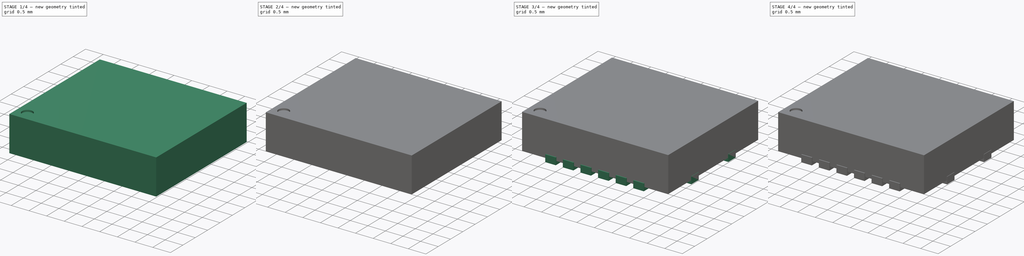
[diagram: build sequence overview — one tinted view per stage of 4, left to right]
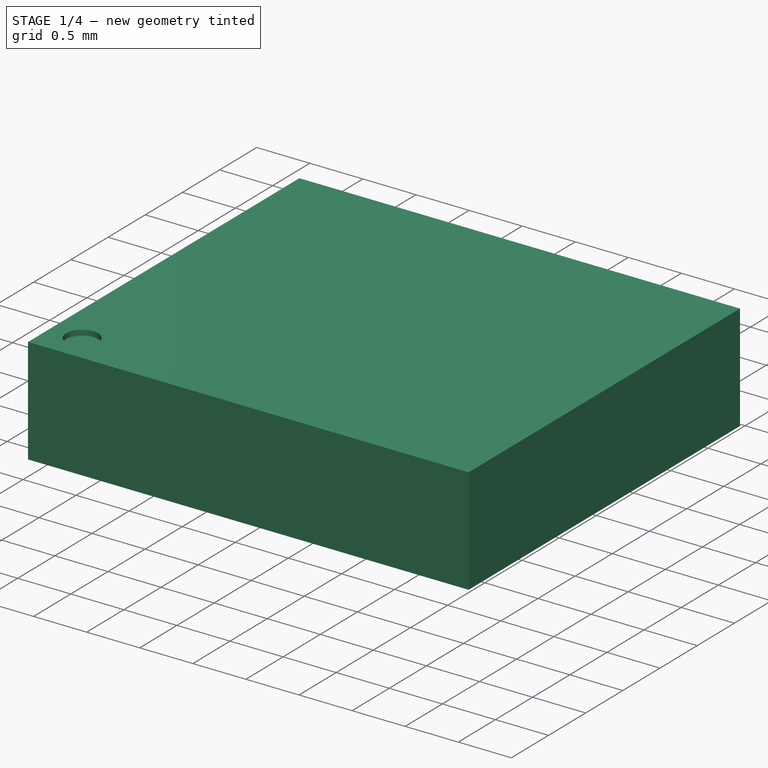
[diagram: stage 1 of 4 — iso view after this stage's code; geometry added in this stage tinted green]
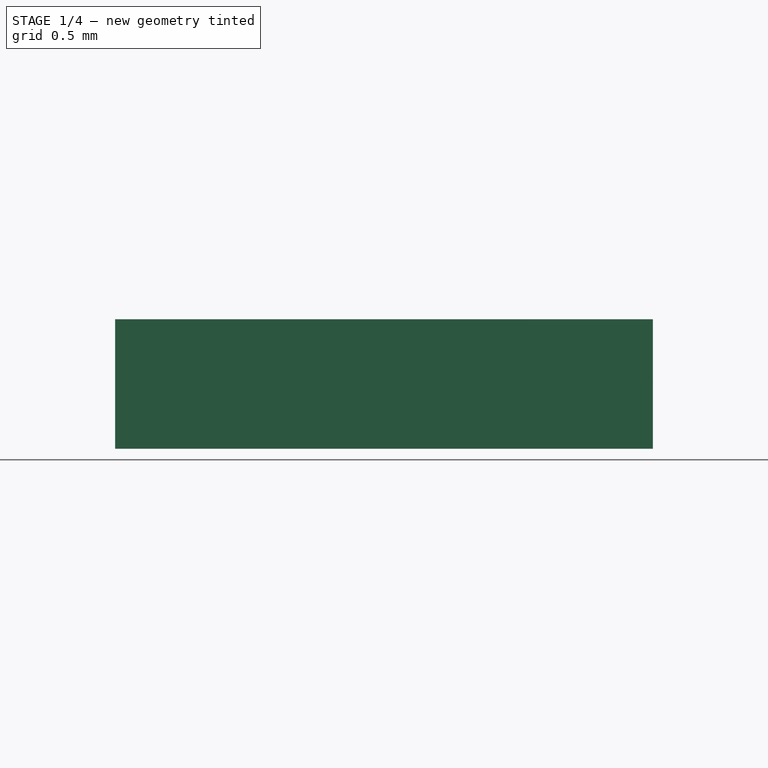
[diagram: stage 1 of 4 — front view after this stage's code; geometry added in this stage tinted green]
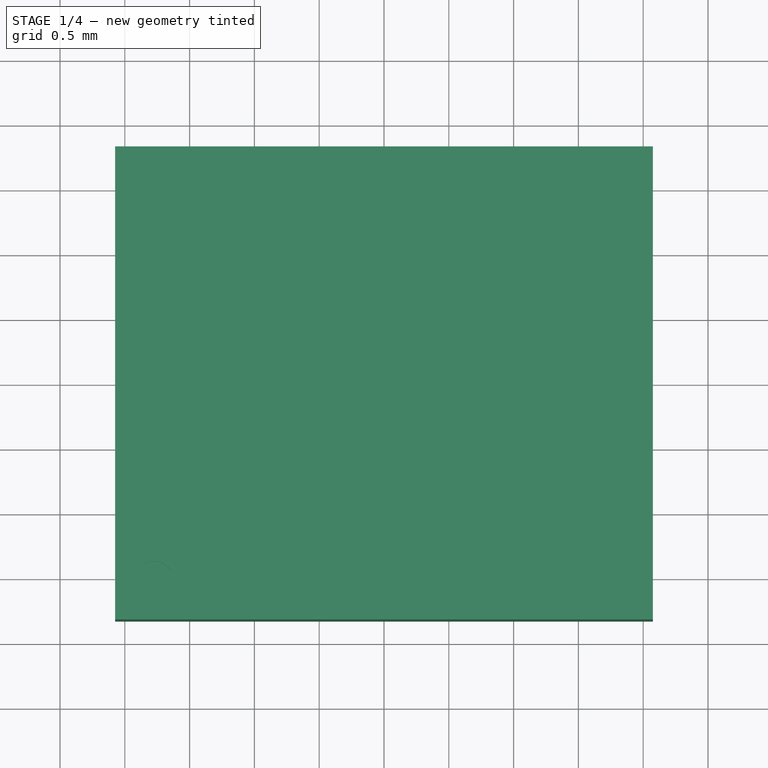
[diagram: stage 1 of 4 — top view after this stage's code; geometry added in this stage tinted green]
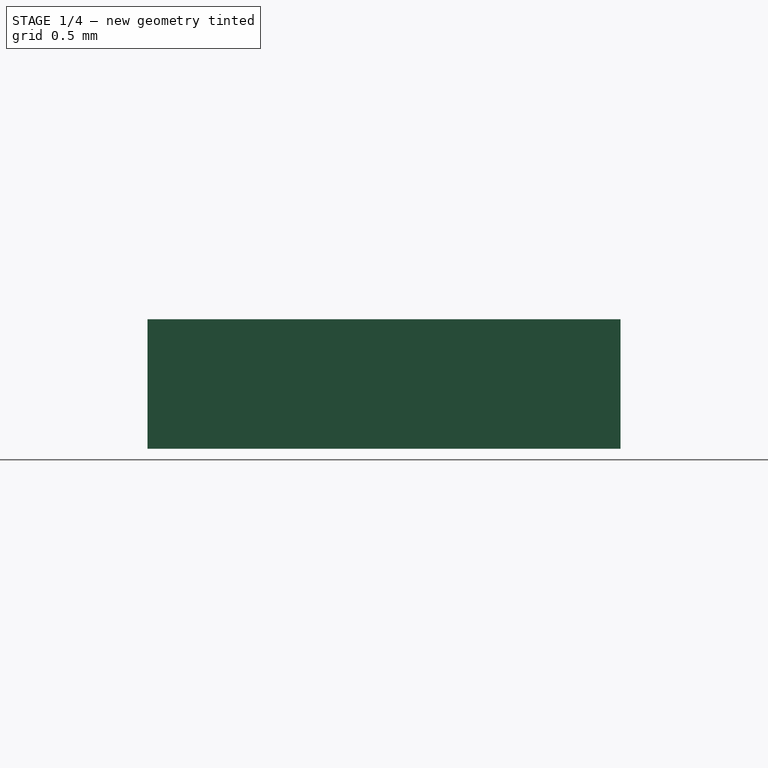
[diagram: stage 1 of 4 — right view after this stage's code; geometry added in this stage tinted green]
FCSTD DOCUMENT  (FreeCAD 0.16R6703 (Git))
Label: PVQFN16
License: All rights reserved
LicenseURL: http://en.wikipedia.org/wiki/All_rights_reserved
objects: Part::FeaturePython×6, Sketcher::SketchObject×3, PartDesign::Pad×2, Part::Mirroring×2, Part::Box×1, Part::MultiFuse×1, PartDesign::Pocket×1, App::DocumentObjectGroup×1
note: 19 computed .brp shape members not serialized (recipe doc carries the construction recipe); baked Part::Feature solids carry a one-line shape summary decoded from their .brp

FEATURE [Part::Box] Box  label="body-src"
  Height = 1
  Length = 4.15
  Placement = pos=(-2.075,-1.825,0.1) rot=(0,0,1;0rad)
  Width = 3.65
FEATURE [Sketcher::SketchObject] Sketch002
  Placement = pos=(-2.075,-1.825,1.1) rot=(0,0,1;0rad)
  Support = -> Box [Face6]
  sketch-geometry (1):
    g0: Circle CenterX=0.3 CenterY=0.3 CenterZ=0 NormalX=0 NormalY=0 NormalZ=1 Radius=0.15
  constraints (3):
    c: Radius(g0) = 0.15
    c: DistanceX(g-1,g0) = 0.3
    c: DistanceY(g-1,g0) = 0.3
FEATURE [PartDesign::Pocket] Pocket  label="body-mark"
  Length = 0.05
  Placement = pos=(-2.075,-1.825,0.1) rot=(0,0,1;0rad)
  Sketch = -> Sketch002
  Type = 0
FEATURE [App::DocumentObjectGroup] Group  label="src"
  Group = -> [Box,Pad001,Fusion,Pocket]
FEATURE [Part::FeaturePython] Clone004  label="body"  # Draft clone (typed FeaturePython)
  Objects = -> [Pocket]
  Placement = pos=(-2.075,-1.825,0.1) rot=(0,0,1;0rad)
  Scale = (1,1,1)
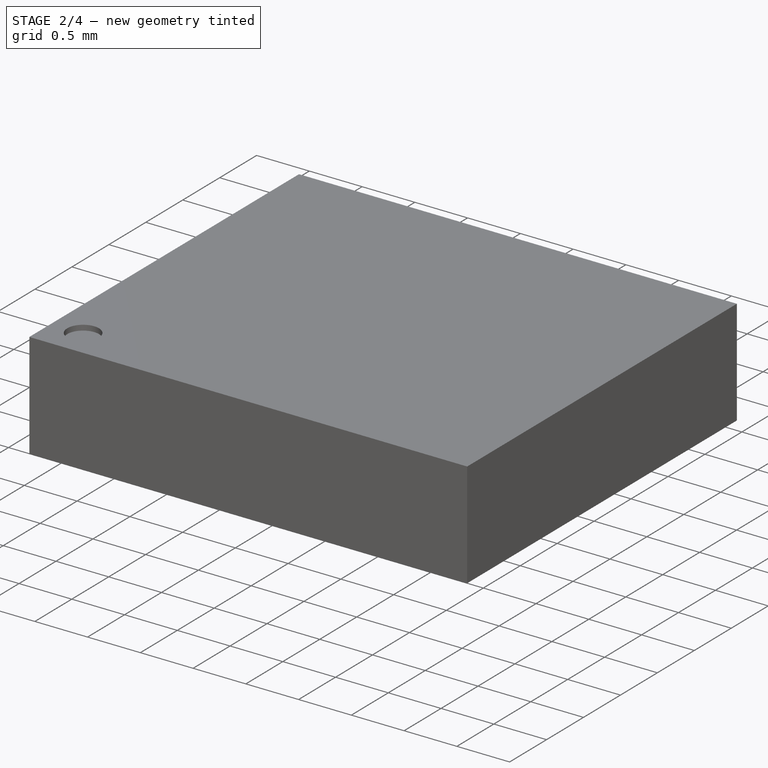
[diagram: stage 2 of 4 — iso view after this stage's code; geometry added in this stage tinted green]
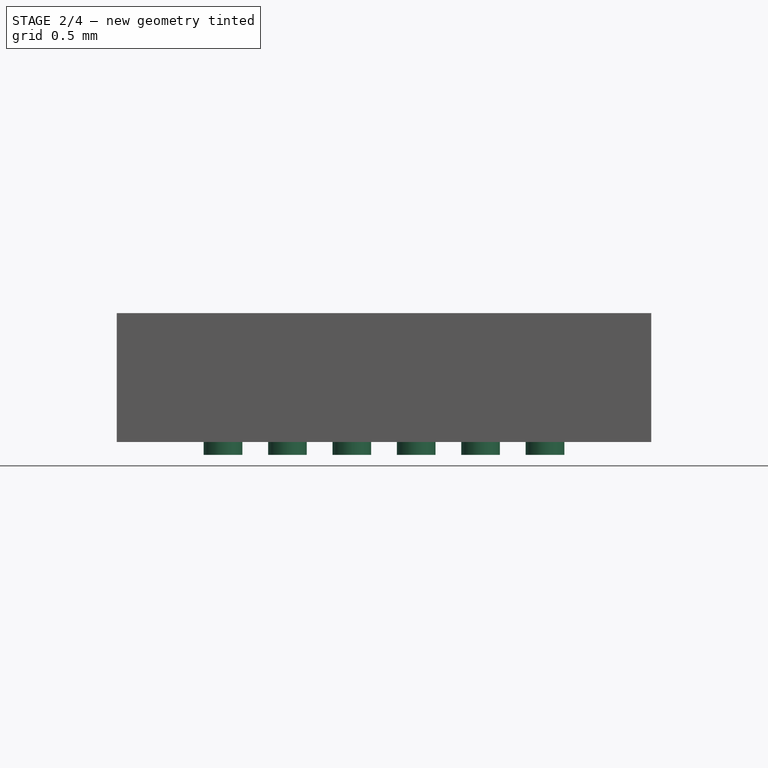
[diagram: stage 2 of 4 — front view after this stage's code; geometry added in this stage tinted green]
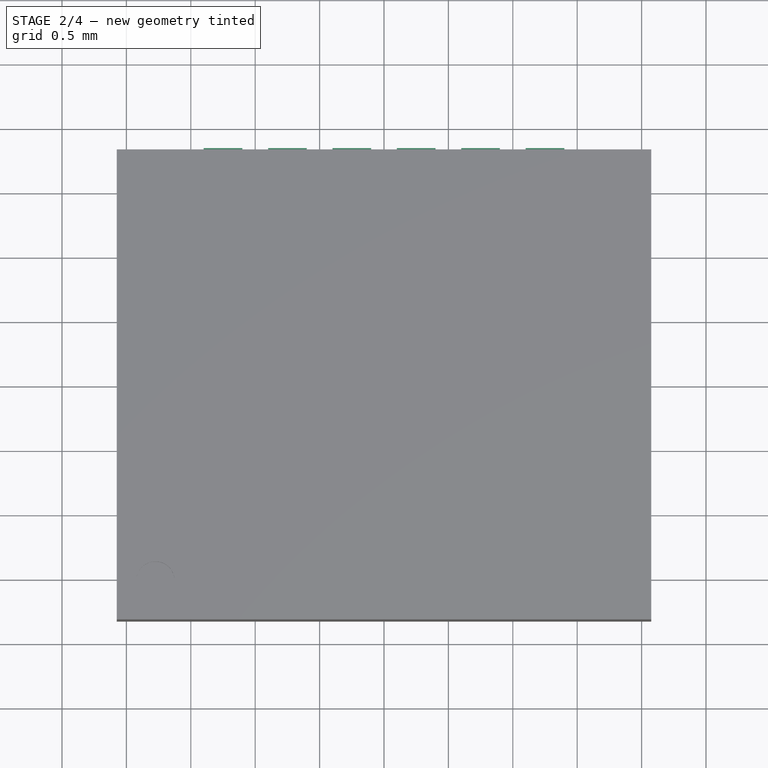
[diagram: stage 2 of 4 — top view after this stage's code; geometry added in this stage tinted green]
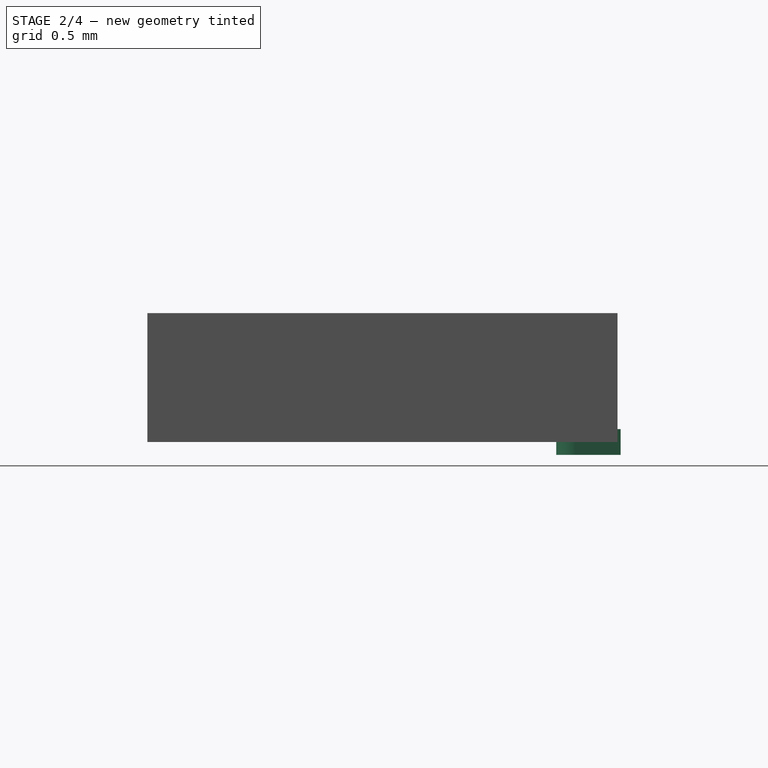
[diagram: stage 2 of 4 — right view after this stage's code; geometry added in this stage tinted green]
FEATURE [Sketcher::SketchObject] Sketch001  label="pad-sketch"
  sketch-geometry (5):
    g0: LineSegment StartX=0 StartY=0.3 StartZ=0 EndX=0.35 EndY=0.3 EndZ=0
    g1: LineSegment [constr] StartX=0.35 StartY=0.3 StartZ=0 EndX=0.35 EndY=0 EndZ=0
    g2: LineSegment StartX=0.35 StartY=0 StartZ=0 EndX=0 EndY=0 EndZ=0
    g3: LineSegment StartX=0 StartY=0 StartZ=0 EndX=0 EndY=0.3 EndZ=0
    g4: ArcOfCircle CenterX=0.35 CenterY=0.15 CenterZ=0 NormalX=0 NormalY=0 NormalZ=1 Radius=0.15 StartAngle=4.71239 EndAngle=7.85398
  constraints (14):
    c: Coincident(g0,g1)
    c: Coincident(g1,g2)
    c: Coincident(g2,g3)
    c: Coincident(g3,g0)
    c: Horizontal(g0)
    c: Horizontal(g2)
    c: Vertical(g1)
    c: Vertical(g3)
    c: Coincident(g2,g-1)
    c: PointOnObject(g4,g1)
    c: Coincident(g4,g0)
    c: Coincident(g4,g1)
    c: DistanceY(g3,g3) = 0.3
    c: DistanceX(g0,g0) = 0.35
FEATURE [PartDesign::Pad] Pad001  label="Pad-src"
  Length = 0.2
  Length2 = 100
  Sketch = -> Sketch001
  Type = 0
FEATURE [Part::FeaturePython] Clone001  label="pad2"  # Draft clone (typed FeaturePython)
  Objects = -> [Pad001]
  Placement = pos=(-1.4,1.85,0) rot=(0,0,-1;1.5708rad)
  Scale = (1,1,1)
FEATURE [Part::FeaturePython] Array001  label="top-pads"  # Draft array (typed FeaturePython)
  Angle = 360
  ArrayType = 0
  Axis = (0,0,1)
  Base = -> Clone001
  Center = (0,0,0)
  Fuse = false
  IntervalAxis = (0,0,0)
  IntervalX = (0.5,0,0)
  IntervalY = (0,1,0)
  IntervalZ = (0,0,0)
  NumberPolar = 1
  NumberX = 6
  NumberY = 1
  NumberZ = 1
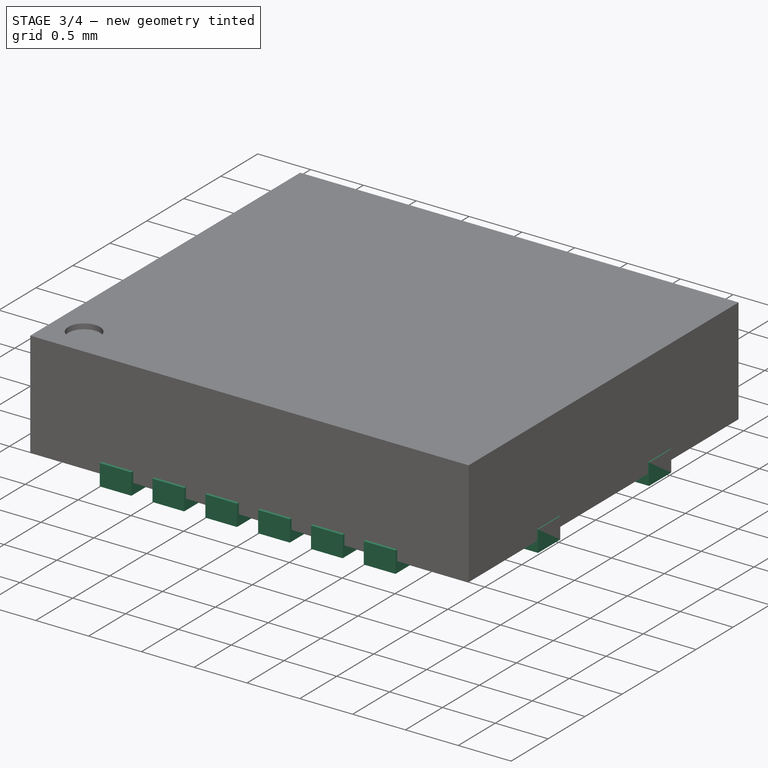
[diagram: stage 3 of 4 — iso view after this stage's code; geometry added in this stage tinted green]
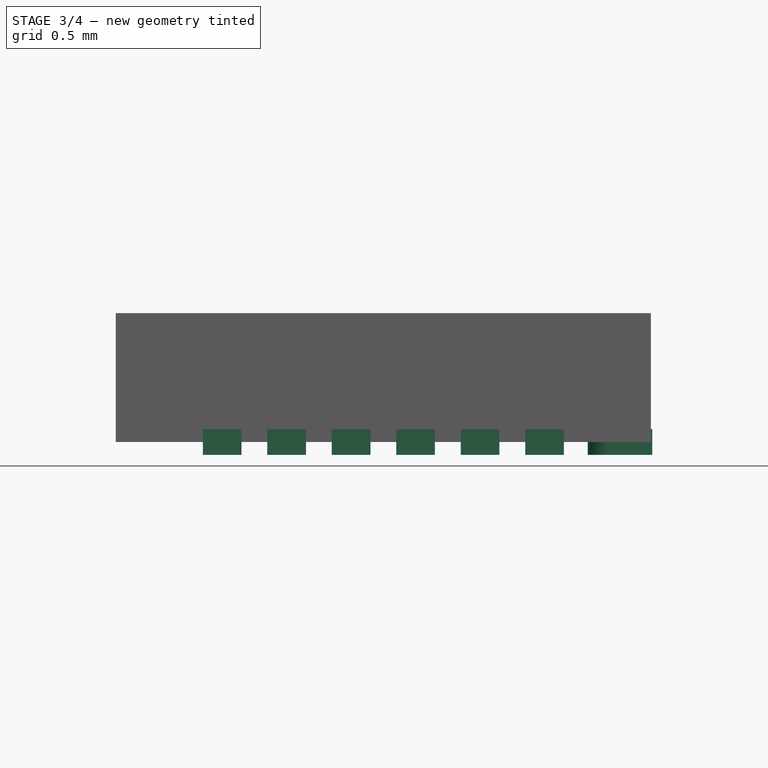
[diagram: stage 3 of 4 — front view after this stage's code; geometry added in this stage tinted green]
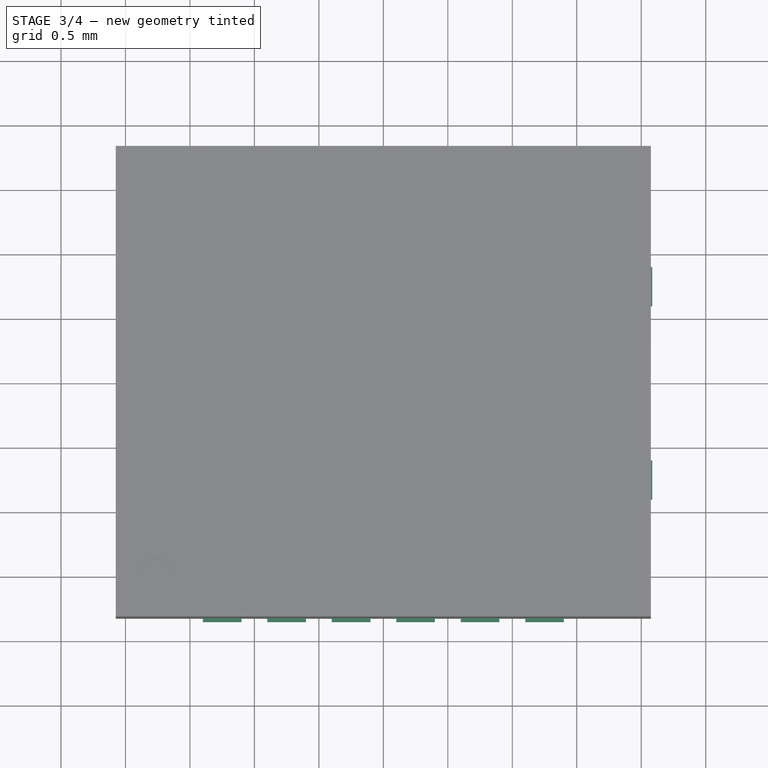
[diagram: stage 3 of 4 — top view after this stage's code; geometry added in this stage tinted green]
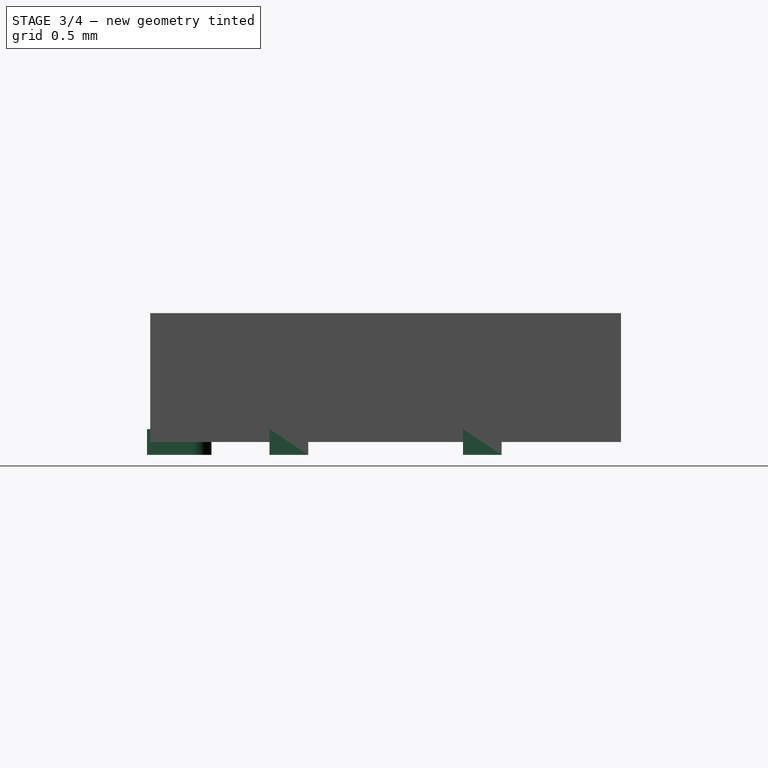
[diagram: stage 3 of 4 — right view after this stage's code; geometry added in this stage tinted green]
FEATURE [Part::FeaturePython] Clone  label="pad1"  # Draft clone (typed FeaturePython)
  Objects = -> [Pad001]
  Placement = pos=(-2.085,0.6,0) rot=(0,0,1;0rad)
  Scale = (1,1,1)
FEATURE [Part::FeaturePython] Array  label="left-pads"  # Draft array (typed FeaturePython)
  Angle = 360
  ArrayType = 0
  Axis = (0,0,1)
  Base = -> Clone
  Center = (0,0,0)
  Fuse = false
  IntervalAxis = (0,0,0)
  IntervalX = (1,0,0)
  IntervalY = (0,-1.5,0)
  IntervalZ = (0,0,0)
  NumberPolar = 1
  NumberX = 1
  NumberY = 2
  NumberZ = 1
FEATURE [Part::Mirroring] Part__Mirroring  label="left-pads (Mirror #1)"
  Base = (0,0,0)
  Normal = (1,0,0)
  Source = -> Array
FEATURE [Part::Mirroring] Part__Mirroring001  label="top-pads (Mirror #2)"
  Base = (0,0,0)
  Normal = (0,1,0)
  Source = -> Array001
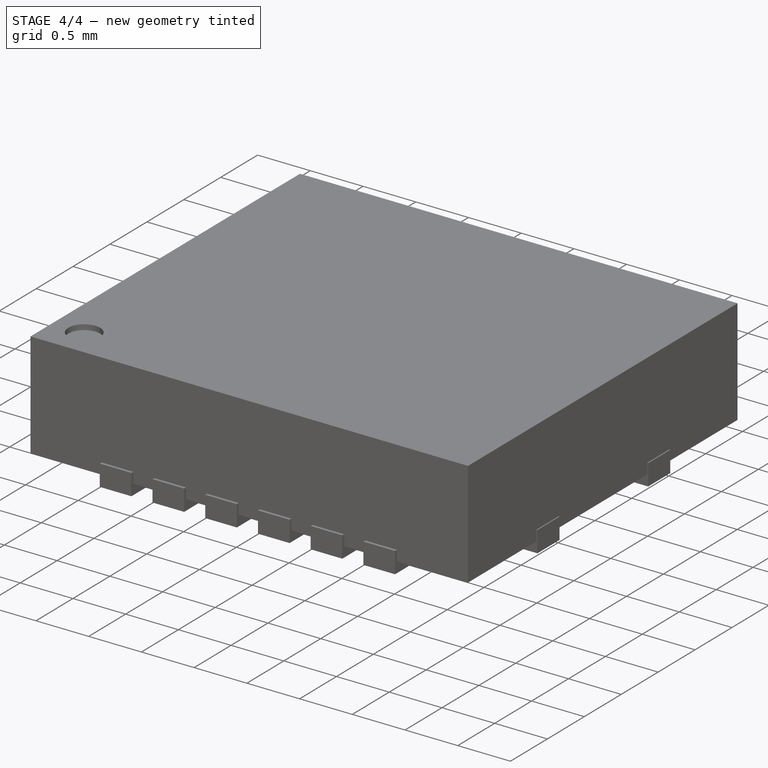
[diagram: stage 4 of 4 — iso view after this stage's code; geometry added in this stage tinted green]
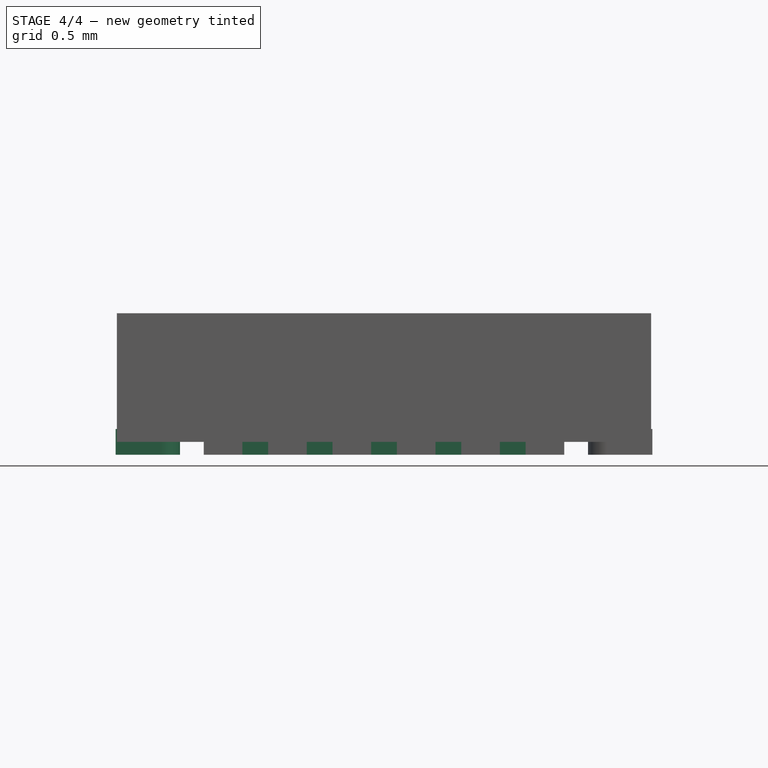
[diagram: stage 4 of 4 — front view after this stage's code; geometry added in this stage tinted green]
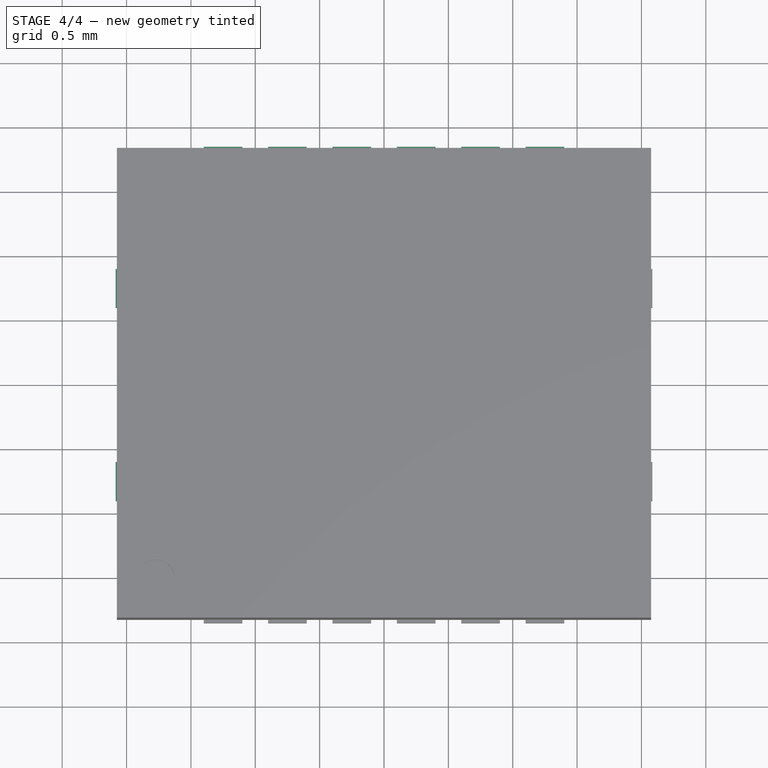
[diagram: stage 4 of 4 — top view after this stage's code; geometry added in this stage tinted green]
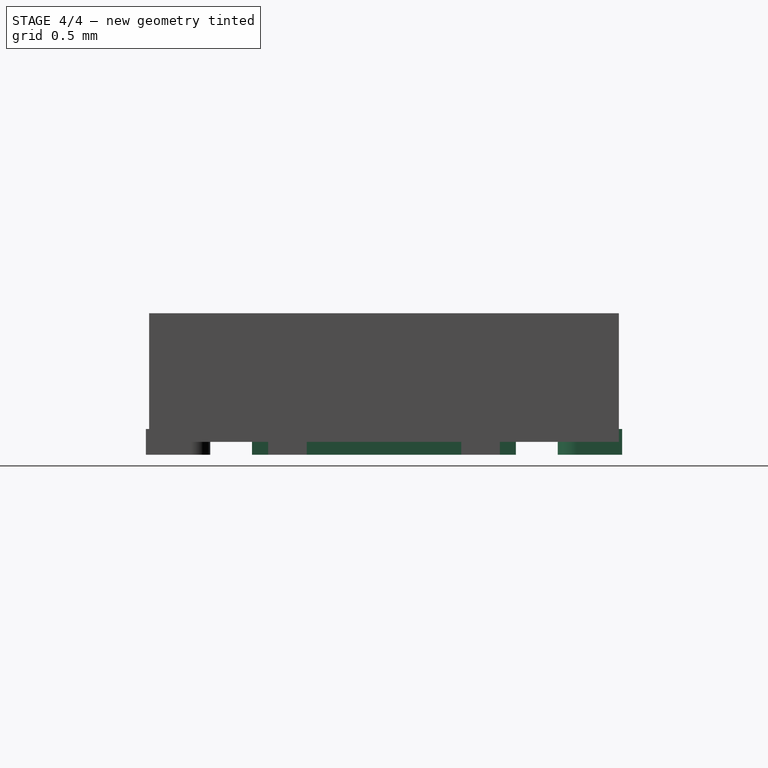
[diagram: stage 4 of 4 — right view after this stage's code; geometry added in this stage tinted green]
FEATURE [Sketcher::SketchObject] Sketch
  sketch-geometry (4):
    g0: LineSegment StartX=-1.275 StartY=1.025 StartZ=0 EndX=1.275 EndY=1.025 EndZ=0
    g1: LineSegment StartX=1.275 StartY=1.025 StartZ=0 EndX=1.275 EndY=-1.025 EndZ=0
    g2: LineSegment StartX=1.275 StartY=-1.025 StartZ=0 EndX=-1.275 EndY=-1.025 EndZ=0
    g3: LineSegment StartX=-1.275 StartY=-1.025 StartZ=0 EndX=-1.275 EndY=1.025 EndZ=0
  constraints (11):
    c: Coincident(g0,g1)
    c: Coincident(g1,g2)
    c: Coincident(g2,g3)
    c: Coincident(g3,g0)
    c: Horizontal(g0)
    c: Horizontal(g2)
    c: Vertical(g1)
    c: Vertical(g3)
    c: Symmetric(g0,g1,g-1)
    c: DistanceX(g0,g0) = 2.55
    c: DistanceY(g1,g1) = 2.05
FEATURE [PartDesign::Pad] Pad  label="central-pad"
  Length = 0.1
  Length2 = 100
  Sketch = -> Sketch
  Type = 0
FEATURE [Part::MultiFuse] Fusion
  Shapes = -> [Part__Mirroring,Array,Part__Mirroring001,Array001,Pad]
FEATURE [Part::FeaturePython] Clone003  label="pads"  # Draft clone (typed FeaturePython)
  Objects = -> [Fusion]
  Scale = (1,1,1)
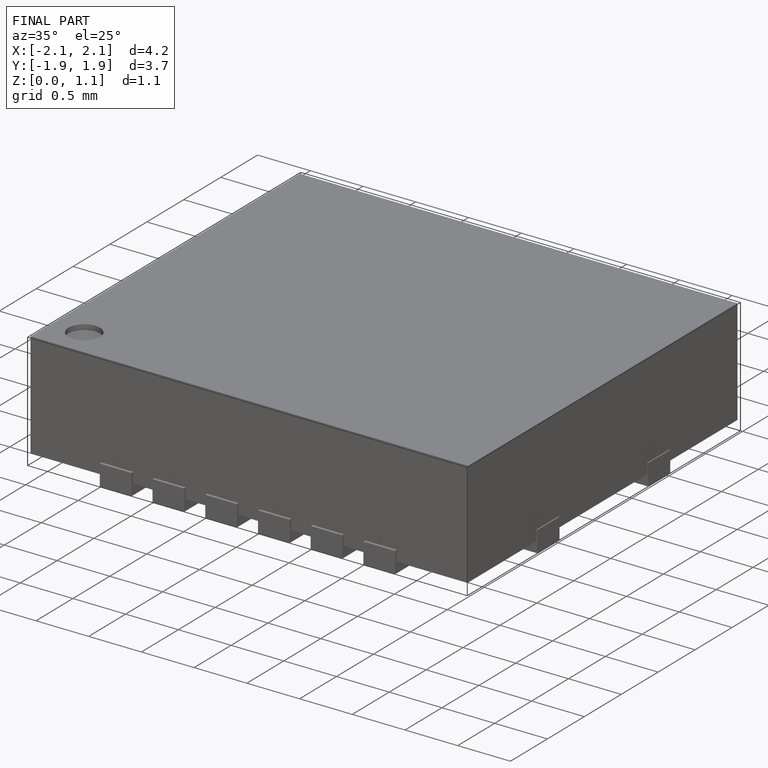
[diagram: finished part — iso view with bounding-box wireframe]
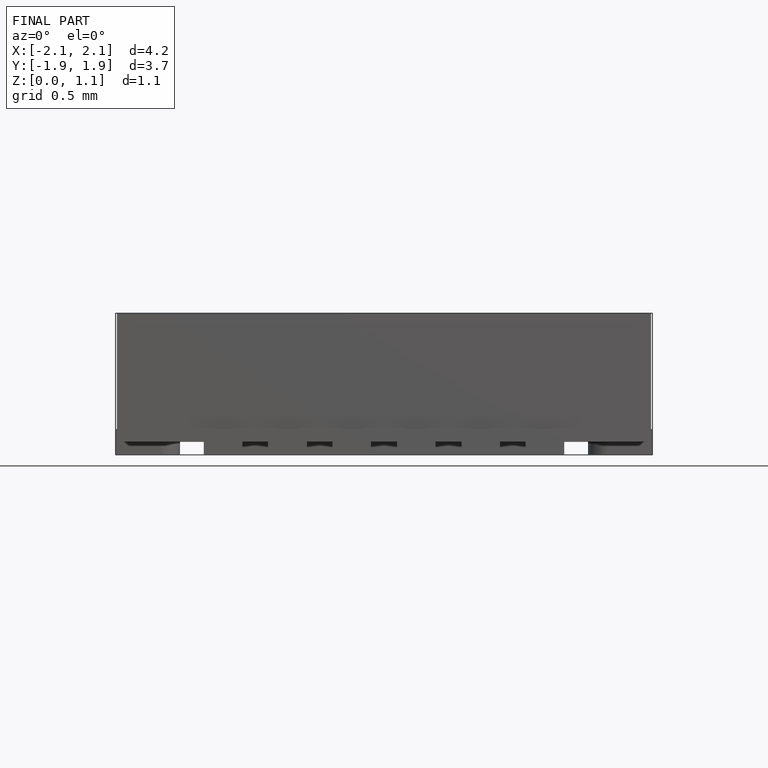
[diagram: finished part — front view with bounding-box wireframe]
